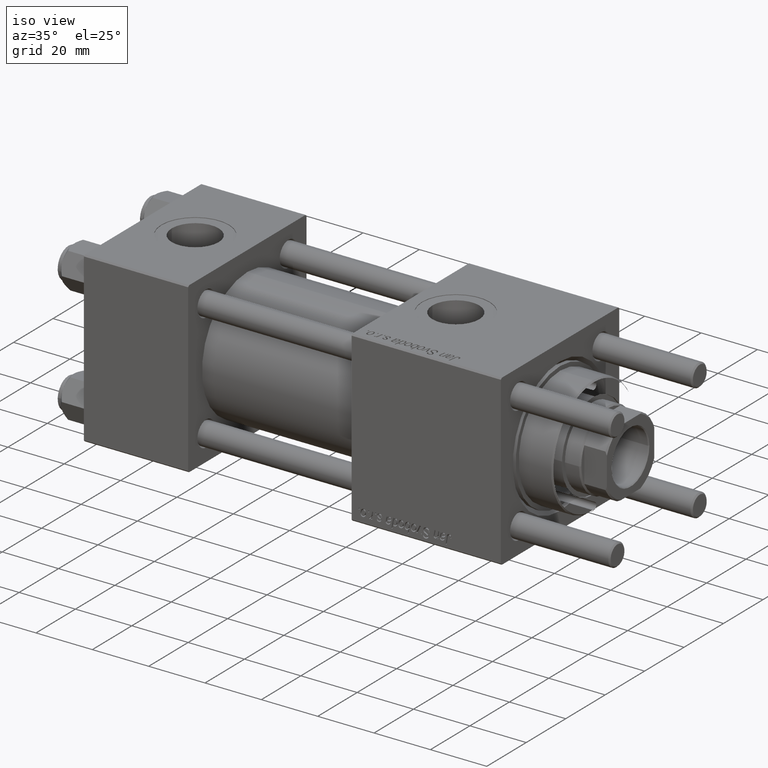
[diagram: clean part render]
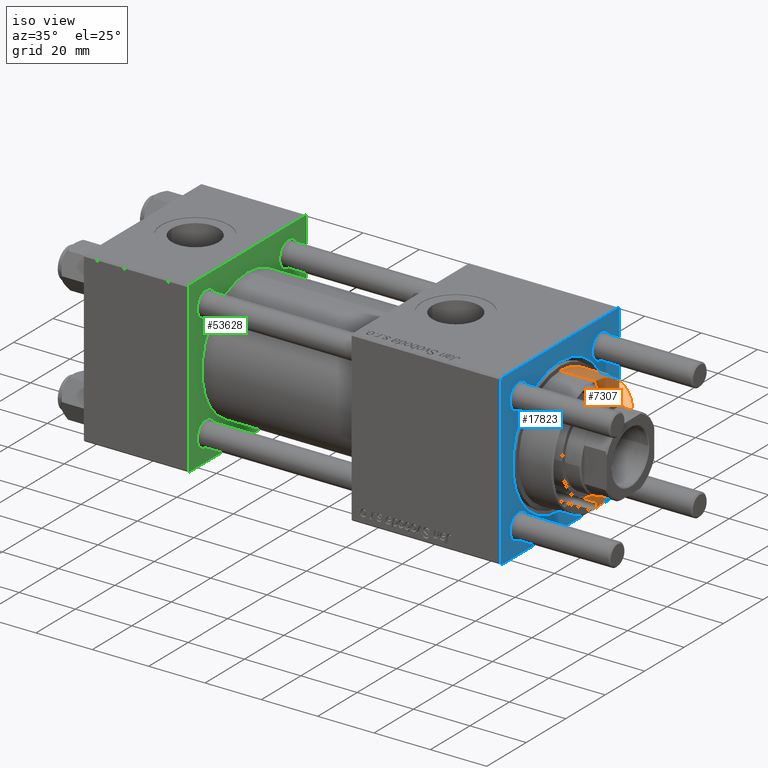
[diagram: same view with three faces highlighted in distinct colors, each labeled with its STEP entity id]
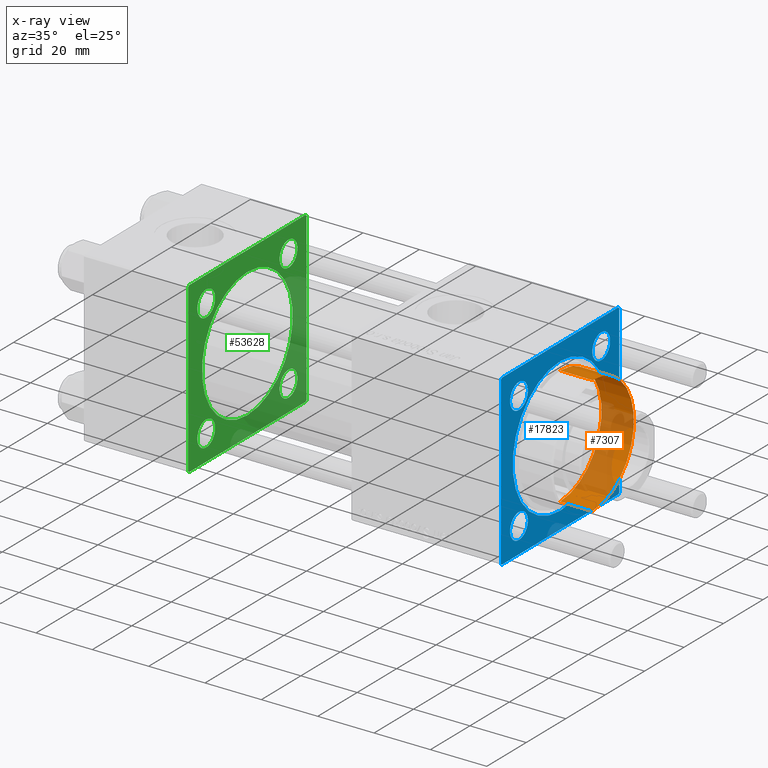
[diagram: x-ray of the same camera — body ghosted, the three highlighted faces saturated]
A machine part, iso view with three faces highlighted in distinct colors.
The next image is the same camera in x-ray (body ghosted, the three faces saturated) — at least one of them is partly hidden behind the body in this view.
Their STEP definitions:

[orange] entity #7307 — the highlighted cylindrical surface (partial cylindrical patch) has radius 21 mm, axis along (-1, -0, 0).
#661 = DIRECTION ( 'NONE',  ( -0.000000000000000000, -0.000000000000000000, -1.000000000000000000 ) ) ;
#1628 = DIRECTION ( 'NONE',  ( 0.000000000000000000, 0.000000000000000000, 1.000000000000000000 ) ) ;
#2353 = ORIENTED_EDGE ( 'NONE', *, *, #32613, .T. ) ;
#5846 = CARTESIAN_POINT ( 'NONE',  ( 21.00000000000000000, 2.571758278209441661E-15, 40.19999999999998863 ) ) ;
#7307 = ADVANCED_FACE ( 'NONE', ( #24473 ), #50431, .T. ) ;
#7558 = CARTESIAN_POINT ( 'NONE',  ( 21.00000000000000000, 2.571758278209441661E-15, 28.69999999999999929 ) ) ;
#8148 = CARTESIAN_POINT ( 'NONE',  ( 0.000000000000000000, 0.000000000000000000, 40.19999999999998863 ) ) ;
#8756 = EDGE_CURVE ( 'NONE', #31700, #32382, #22860, .T. ) ;
#9243 = DIRECTION ( 'NONE',  ( -0.000000000000000000, -0.000000000000000000, -1.000000000000000000 ) ) ;
#10036 = VECTOR ( 'NONE', #661, 1000.000000000000000 ) ;
#12476 = DIRECTION ( 'NONE',  ( 1.000000000000000000, 0.000000000000000000, 0.000000000000000000 ) ) ;
#18282 = ORIENTED_EDGE ( 'NONE', *, *, #38628, .F. ) ;
#18995 = VERTEX_POINT ( 'NONE', #5846 ) ;
#19374 = CIRCLE ( 'NONE', #54352, 21.00000000000000000 ) ;
#20576 = CARTESIAN_POINT ( 'NONE',  ( -21.00000000000000000, 0.000000000000000000, 40.70000000000000284 ) ) ;
#20737 = EDGE_CURVE ( 'NONE', #31317, #18995, #19374, .T. ) ;
#21903 = CARTESIAN_POINT ( 'NONE',  ( 21.00000000000000000, 2.571758278209441661E-15, 40.70000000000000284 ) ) ;
#22860 = CIRCLE ( 'NONE', #26513, 21.00000000000000000 ) ;
#24473 = FACE_OUTER_BOUND ( 'NONE', #53379, .T. ) ;
#25164 = ORIENTED_EDGE ( 'NONE', *, *, #8756, .T. ) ;
#26513 = AXIS2_PLACEMENT_3D ( 'NONE', #50030, #1628, #26967 ) ;
#26967 = DIRECTION ( 'NONE',  ( 1.000000000000000000, 0.000000000000000000, 0.000000000000000000 ) ) ;
#29249 = AXIS2_PLACEMENT_3D ( 'NONE', #32840, #42357, #33426 ) ;
#31144 = ORIENTED_EDGE ( 'NONE', *, *, #20737, .T. ) ;
#31317 = VERTEX_POINT ( 'NONE', #47995 ) ;
#31700 = VERTEX_POINT ( 'NONE', #7558 ) ;
#32382 = VERTEX_POINT ( 'NONE', #56609 ) ;
#32613 = EDGE_CURVE ( 'NONE', #18995, #31700, #43822, .T. ) ;
#32840 = CARTESIAN_POINT ( 'NONE',  ( 0.000000000000000000, 0.000000000000000000, 40.70000000000000284 ) ) ;
#33426 = DIRECTION ( 'NONE',  ( -1.000000000000000000, 0.000000000000000000, 0.000000000000000000 ) ) ;
#38628 = EDGE_CURVE ( 'NONE', #31317, #32382, #42475, .T. ) ;
#42357 = DIRECTION ( 'NONE',  ( -0.000000000000000000, -0.000000000000000000, -1.000000000000000000 ) ) ;
#42475 = LINE ( 'NONE', #20576, #10036 ) ;
#43822 = LINE ( 'NONE', #21903, #56414 ) ;
#47995 = CARTESIAN_POINT ( 'NONE',  ( -21.00000000000000000, 0.000000000000000000, 40.19999999999998863 ) ) ;
#50030 = CARTESIAN_POINT ( 'NONE',  ( 0.000000000000000000, 0.000000000000000000, 28.69999999999999929 ) ) ;
#50431 = CYLINDRICAL_SURFACE ( 'NONE', #29249, 21.00000000000000000 ) ;
#52795 = DIRECTION ( 'NONE',  ( 0.000000000000000000, 0.000000000000000000, -1.000000000000000000 ) ) ;
#53379 = EDGE_LOOP ( 'NONE', ( #31144, #2353, #25164, #18282 ) ) ;
#54352 = AXIS2_PLACEMENT_3D ( 'NONE', #8148, #52795, #12476 ) ;
#56414 = VECTOR ( 'NONE', #9243, 1000.000000000000000 ) ;
#56609 = CARTESIAN_POINT ( 'NONE',  ( -21.00000000000000000, 0.000000000000000000, 28.69999999999999929 ) ) ;

[blue] entity #17823 — the highlighted planar face has unit normal (-1, 0, 0).
#734 = EDGE_CURVE ( 'NONE', #2885, #24514, #1461, .T. ) ;
#963 = EDGE_CURVE ( 'NONE', #19025, #3186, #14430, .T. ) ;
#1203 = CARTESIAN_POINT ( 'NONE',  ( 148.0000000000000000, 30.00000000000000000, 29.50000000000000000 ) ) ;
#1461 = CIRCLE ( 'NONE', #22612, 24.00000000000003908 ) ;
#1583 = DIRECTION ( 'NONE',  ( 0.000000000000000000, 0.7071067811865474617, -0.7071067811865474617 ) ) ;
#1802 = LINE ( 'NONE', #23956, #48539 ) ;
#1964 = EDGE_CURVE ( 'NONE', #15733, #20073, #9806, .T. ) ;
#1990 = VERTEX_POINT ( 'NONE', #27942 ) ;
#2524 = EDGE_CURVE ( 'NONE', #21580, #38340, #10729, .T. ) ;
#2616 = CARTESIAN_POINT ( 'NONE',  ( 148.0000000000000000, -20.84999999999999076, -25.35000000000002274 ) ) ;
#2792 = DIRECTION ( 'NONE',  ( -0.000000000000000000, 0.000000000000000000, 1.000000000000000000 ) ) ;
#2885 = VERTEX_POINT ( 'NONE', #48720 ) ;
#3186 = VERTEX_POINT ( 'NONE', #10051 ) ;
#3200 = CARTESIAN_POINT ( 'NONE',  ( 148.0000000000000000, 29.50000000000000000, 30.00000000000000000 ) ) ;
#3364 = FACE_BOUND ( 'NONE', #21308, .T. ) ;
#3444 = EDGE_CURVE ( 'NONE', #46912, #9276, #17191, .T. ) ;
#3587 = EDGE_CURVE ( 'NONE', #24514, #2885, #43855, .T. ) ;
#3963 = EDGE_CURVE ( 'NONE', #1990, #8160, #36338, .T. ) ;
#4222 = DIRECTION ( 'NONE',  ( 0.000000000000000000, 0.000000000000000000, 1.000000000000000000 ) ) ;
#4436 = DIRECTION ( 'NONE',  ( 0.000000000000000000, 0.000000000000000000, 1.000000000000000000 ) ) ;
#5067 = DIRECTION ( 'NONE',  ( 0.000000000000000000, 0.000000000000000000, 1.000000000000000000 ) ) ;
#5608 = DIRECTION ( 'NONE',  ( -1.000000000000000000, 0.000000000000000000, -0.000000000000000000 ) ) ;
#5778 = DIRECTION ( 'NONE',  ( -1.000000000000000000, 0.000000000000000000, -0.000000000000000000 ) ) ;
#5893 = ORIENTED_EDGE ( 'NONE', *, *, #3444, .T. ) ;
#6052 = DIRECTION ( 'NONE',  ( 0.000000000000000000, 0.000000000000000000, 1.000000000000000000 ) ) ;
#6135 = DIRECTION ( 'NONE',  ( 0.000000000000000000, -1.000000000000000000, -1.156482317317871478E-16 ) ) ;
#6450 = VERTEX_POINT ( 'NONE', #9426 ) ;
#6655 = ORIENTED_EDGE ( 'NONE', *, *, #42200, .T. ) ;
#7302 = ORIENTED_EDGE ( 'NONE', *, *, #9809, .T. ) ;
#7660 = CARTESIAN_POINT ( 'NONE',  ( 148.0000000000000000, 0.000000000000000000, 0.000000000000000000 ) ) ;
#7925 = VECTOR ( 'NONE', #31717, 1000.000000000000114 ) ;
#7984 = DIRECTION ( 'NONE',  ( -1.000000000000000000, 0.000000000000000000, -0.000000000000000000 ) ) ;
#8160 = VERTEX_POINT ( 'NONE', #11979 ) ;
#8162 = CIRCLE ( 'NONE', #44958, 4.500000000000017764 ) ;
#8267 = AXIS2_PLACEMENT_3D ( 'NONE', #34184, #47166, #2792 ) ;
#8471 = VERTEX_POINT ( 'NONE', #1203 ) ;
#9276 = VERTEX_POINT ( 'NONE', #48463 ) ;
#9426 = CARTESIAN_POINT ( 'NONE',  ( 148.0000000000000000, 20.84999999999999787, -16.34999999999998366 ) ) ;
#9550 = ORIENTED_EDGE ( 'NONE', *, *, #13409, .T. ) ;
#9806 = CIRCLE ( 'NONE', #30032, 4.500000000000017764 ) ;
#9809 = EDGE_CURVE ( 'NONE', #23866, #23623, #1802, .T. ) ;
#10051 = CARTESIAN_POINT ( 'NONE',  ( 148.0000000000000000, 30.00000000000000000, -29.49999999999997868 ) ) ;
#10554 = LINE ( 'NONE', #15718, #46775 ) ;
#10729 = CIRCLE ( 'NONE', #49333, 4.500000000000017764 ) ;
#10731 = ORIENTED_EDGE ( 'NONE', *, *, #53679, .F. ) ;
#10799 = CARTESIAN_POINT ( 'NONE',  ( 148.0000000000000000, 20.84999999999999787, 20.85000000000000142 ) ) ;
#10887 = EDGE_CURVE ( 'NONE', #20073, #15733, #35698, .T. ) ;
#11979 = CARTESIAN_POINT ( 'NONE',  ( 148.0000000000000000, -30.00000000000000000, -29.49999999999998579 ) ) ;
#12266 = ORIENTED_EDGE ( 'NONE', *, *, #36081, .T. ) ;
#13409 = EDGE_CURVE ( 'NONE', #25716, #6450, #8162, .T. ) ;
#13591 = CARTESIAN_POINT ( 'NONE',  ( 148.0000000000000000, 20.84999999999999787, -20.85000000000000142 ) ) ;
#13992 = CARTESIAN_POINT ( 'NONE',  ( 148.0000000000000000, -20.84999999999999076, -20.85000000000000497 ) ) ;
#14165 = DIRECTION ( 'NONE',  ( -1.000000000000000000, 0.000000000000000000, -0.000000000000000000 ) ) ;
#14260 = CARTESIAN_POINT ( 'NONE',  ( 148.0000000000000000, -20.84999999999999076, 20.85000000000000497 ) ) ;
#14407 = VECTOR ( 'NONE', #45277, 1000.000000000000000 ) ;
#14430 = LINE ( 'NONE', #22490, #7925 ) ;
#15386 = DIRECTION ( 'NONE',  ( 0.000000000000000000, 0.000000000000000000, 1.000000000000000000 ) ) ;
#15446 = CARTESIAN_POINT ( 'NONE',  ( 148.0000000000000000, 2.939152317953652628E-15, 24.00000000000003908 ) ) ;
#15718 = CARTESIAN_POINT ( 'NONE',  ( 148.0000000000000000, -30.00000000000000000, 29.49999999999999289 ) ) ;
#15733 = VERTEX_POINT ( 'NONE', #52769 ) ;
#16319 = PLANE ( 'NONE',  #8267 ) ;
#16756 = ORIENTED_EDGE ( 'NONE', *, *, #3963, .T. ) ;
#16889 = FACE_BOUND ( 'NONE', #55677, .T. ) ;
#16908 = CARTESIAN_POINT ( 'NONE',  ( 148.0000000000000000, -20.84999999999999076, 20.85000000000000497 ) ) ;
#17191 = CIRCLE ( 'NONE', #40202, 4.500000000000017764 ) ;
#17823 = ADVANCED_FACE ( 'NONE', ( #33325, #55245, #3364, #16889, #25240, #29568 ), #16319, .F. ) ;
#18035 = DIRECTION ( 'NONE',  ( -1.000000000000000000, 0.000000000000000000, -0.000000000000000000 ) ) ;
#18082 = EDGE_CURVE ( 'NONE', #8160, #38365, #22884, .T. ) ;
#18257 = LINE ( 'NONE', #36678, #37157 ) ;
#18384 = VECTOR ( 'NONE', #1583, 1000.000000000000114 ) ;
#18789 = CARTESIAN_POINT ( 'NONE',  ( 148.0000000000000000, -20.84999999999999076, 25.35000000000002274 ) ) ;
#19025 = VERTEX_POINT ( 'NONE', #53696 ) ;
#19354 = ORIENTED_EDGE ( 'NONE', *, *, #42259, .T. ) ;
#20073 = VERTEX_POINT ( 'NONE', #2616 ) ;
#20495 = ORIENTED_EDGE ( 'NONE', *, *, #39393, .T. ) ;
#21062 = ORIENTED_EDGE ( 'NONE', *, *, #2524, .T. ) ;
#21209 = LINE ( 'NONE', #34188, #40751 ) ;
#21308 = EDGE_LOOP ( 'NONE', ( #5893, #6655 ) ) ;
#21580 = VERTEX_POINT ( 'NONE', #18789 ) ;
#22218 = AXIS2_PLACEMENT_3D ( 'NONE', #34494, #29319, #30164 ) ;
#22490 = CARTESIAN_POINT ( 'NONE',  ( 148.0000000000000000, 30.00000000000000000, -29.49999999999999289 ) ) ;
#22612 = AXIS2_PLACEMENT_3D ( 'NONE', #35037, #18035, #5067 ) ;
#22781 = EDGE_LOOP ( 'NONE', ( #31704, #24838 ) ) ;
#22814 = AXIS2_PLACEMENT_3D ( 'NONE', #13992, #31563, #39921 ) ;
#22874 = ORIENTED_EDGE ( 'NONE', *, *, #963, .T. ) ;
#22884 = LINE ( 'NONE', #41041, #18384 ) ;
#23623 = VERTEX_POINT ( 'NONE', #56914 ) ;
#23866 = VERTEX_POINT ( 'NONE', #3200 ) ;
#23956 = CARTESIAN_POINT ( 'NONE',  ( 148.0000000000000000, 30.00000000000000000, 30.00000000000000000 ) ) ;
#24514 = VERTEX_POINT ( 'NONE', #15446 ) ;
#24838 = ORIENTED_EDGE ( 'NONE', *, *, #3587, .T. ) ;
#25240 = FACE_BOUND ( 'NONE', #22781, .T. ) ;
#25716 = VERTEX_POINT ( 'NONE', #54005 ) ;
#25804 = CIRCLE ( 'NONE', #36838, 4.500000000000017764 ) ;
#26702 = CIRCLE ( 'NONE', #48810, 4.500000000000017764 ) ;
#27675 = CARTESIAN_POINT ( 'NONE',  ( 148.0000000000000000, -30.00000000000000000, 29.99999999999999289 ) ) ;
#27942 = CARTESIAN_POINT ( 'NONE',  ( 148.0000000000000000, -30.00000000000000000, 29.49999999999999289 ) ) ;
#28504 = EDGE_LOOP ( 'NONE', ( #16756, #43270, #53737, #22874, #10731, #20495, #7302, #12266 ) ) ;
#28632 = CARTESIAN_POINT ( 'NONE',  ( 148.0000000000000000, -29.50000000000000000, -30.00000000000000000 ) ) ;
#29208 = CARTESIAN_POINT ( 'NONE',  ( 148.0000000000000000, 29.50000000000000000, 30.00000000000000000 ) ) ;
#29319 = DIRECTION ( 'NONE',  ( -1.000000000000000000, 0.000000000000000000, -0.000000000000000000 ) ) ;
#29568 = FACE_OUTER_BOUND ( 'NONE', #28504, .T. ) ;
#30032 = AXIS2_PLACEMENT_3D ( 'NONE', #31424, #5778, #6052 ) ;
#30164 = DIRECTION ( 'NONE',  ( 0.000000000000000000, 0.000000000000000000, 1.000000000000000000 ) ) ;
#30340 = ORIENTED_EDGE ( 'NONE', *, *, #10887, .T. ) ;
#31159 = DIRECTION ( 'NONE',  ( 0.000000000000000000, 0.000000000000000000, 1.000000000000000000 ) ) ;
#31424 = CARTESIAN_POINT ( 'NONE',  ( 148.0000000000000000, -20.84999999999999076, -20.85000000000000497 ) ) ;
#31563 = DIRECTION ( 'NONE',  ( -1.000000000000000000, 0.000000000000000000, -0.000000000000000000 ) ) ;
#31704 = ORIENTED_EDGE ( 'NONE', *, *, #734, .T. ) ;
#31717 = DIRECTION ( 'NONE',  ( -0.000000000000000000, 0.7071067811865474617, 0.7071067811865474617 ) ) ;
#32249 = EDGE_LOOP ( 'NONE', ( #9550, #41622 ) ) ;
#32675 = DIRECTION ( 'NONE',  ( -1.000000000000000000, 0.000000000000000000, -0.000000000000000000 ) ) ;
#32686 = LINE ( 'NONE', #29208, #47830 ) ;
#33325 = FACE_BOUND ( 'NONE', #38031, .T. ) ;
#34184 = CARTESIAN_POINT ( 'NONE',  ( 148.0000000000000000, 0.000000000000000000, 0.000000000000000000 ) ) ;
#34188 = CARTESIAN_POINT ( 'NONE',  ( 148.0000000000000000, 30.00000000000000000, 30.00000000000000000 ) ) ;
#34488 = DIRECTION ( 'NONE',  ( -1.000000000000000000, 0.000000000000000000, -0.000000000000000000 ) ) ;
#34494 = CARTESIAN_POINT ( 'NONE',  ( 148.0000000000000000, 20.84999999999999787, -20.85000000000000142 ) ) ;
#35037 = CARTESIAN_POINT ( 'NONE',  ( 148.0000000000000000, 0.000000000000000000, 0.000000000000000000 ) ) ;
#35698 = CIRCLE ( 'NONE', #22814, 4.500000000000017764 ) ;
#36081 = EDGE_CURVE ( 'NONE', #23623, #1990, #10554, .T. ) ;
#36338 = LINE ( 'NONE', #27675, #14407 ) ;
#36678 = CARTESIAN_POINT ( 'NONE',  ( 148.0000000000000000, 30.00000000000000000, -29.99999999999999289 ) ) ;
#36838 = AXIS2_PLACEMENT_3D ( 'NONE', #10799, #32675, #15386 ) ;
#37157 = VECTOR ( 'NONE', #6135, 1000.000000000000000 ) ;
#37290 = CARTESIAN_POINT ( 'NONE',  ( 148.0000000000000000, -20.84999999999999076, 16.34999999999998721 ) ) ;
#38031 = EDGE_LOOP ( 'NONE', ( #30340, #53364 ) ) ;
#38340 = VERTEX_POINT ( 'NONE', #37290 ) ;
#38365 = VERTEX_POINT ( 'NONE', #28632 ) ;
#38816 = CARTESIAN_POINT ( 'NONE',  ( 148.0000000000000000, 20.84999999999999787, 20.85000000000000142 ) ) ;
#39393 = EDGE_CURVE ( 'NONE', #8471, #23866, #32686, .T. ) ;
#39587 = CIRCLE ( 'NONE', #22218, 4.500000000000017764 ) ;
#39921 = DIRECTION ( 'NONE',  ( 0.000000000000000000, 0.000000000000000000, 1.000000000000000000 ) ) ;
#40202 = AXIS2_PLACEMENT_3D ( 'NONE', #38816, #34488, #4222 ) ;
#40751 = VECTOR ( 'NONE', #48277, 1000.000000000000000 ) ;
#41041 = CARTESIAN_POINT ( 'NONE',  ( 148.0000000000000000, -29.50000000000000000, -30.00000000000000000 ) ) ;
#41622 = ORIENTED_EDGE ( 'NONE', *, *, #45800, .T. ) ;
#42200 = EDGE_CURVE ( 'NONE', #9276, #46912, #25804, .T. ) ;
#42259 = EDGE_CURVE ( 'NONE', #38340, #21580, #26702, .T. ) ;
#43270 = ORIENTED_EDGE ( 'NONE', *, *, #18082, .T. ) ;
#43855 = CIRCLE ( 'NONE', #56791, 24.00000000000003908 ) ;
#44958 = AXIS2_PLACEMENT_3D ( 'NONE', #13591, #14165, #31159 ) ;
#45023 = DIRECTION ( 'NONE',  ( 0.000000000000000000, -1.000000000000000000, -1.156482317317871478E-16 ) ) ;
#45277 = DIRECTION ( 'NONE',  ( 0.000000000000000000, 0.000000000000000000, -1.000000000000000000 ) ) ;
#45800 = EDGE_CURVE ( 'NONE', #6450, #25716, #39587, .T. ) ;
#46775 = VECTOR ( 'NONE', #55507, 1000.000000000000114 ) ;
#46809 = DIRECTION ( 'NONE',  ( 0.000000000000000000, -0.7071067811865474617, 0.7071067811865474617 ) ) ;
#46912 = VERTEX_POINT ( 'NONE', #55139 ) ;
#47166 = DIRECTION ( 'NONE',  ( -1.000000000000000000, 0.000000000000000000, -0.000000000000000000 ) ) ;
#47830 = VECTOR ( 'NONE', #46809, 1000.000000000000114 ) ;
#48277 = DIRECTION ( 'NONE',  ( 0.000000000000000000, 0.000000000000000000, -1.000000000000000000 ) ) ;
#48463 = CARTESIAN_POINT ( 'NONE',  ( 148.0000000000000000, 20.84999999999999787, 25.35000000000001918 ) ) ;
#48539 = VECTOR ( 'NONE', #45023, 1000.000000000000000 ) ;
#48720 = CARTESIAN_POINT ( 'NONE',  ( 148.0000000000000000, 0.000000000000000000, -24.00000000000003908 ) ) ;
#48810 = AXIS2_PLACEMENT_3D ( 'NONE', #14260, #5608, #49980 ) ;
#49333 = AXIS2_PLACEMENT_3D ( 'NONE', #16908, #7984, #56683 ) ;
#49980 = DIRECTION ( 'NONE',  ( 0.000000000000000000, 0.000000000000000000, 1.000000000000000000 ) ) ;
#52009 = DIRECTION ( 'NONE',  ( -1.000000000000000000, 0.000000000000000000, -0.000000000000000000 ) ) ;
#52769 = CARTESIAN_POINT ( 'NONE',  ( 148.0000000000000000, -20.84999999999999076, -16.34999999999998721 ) ) ;
#53364 = ORIENTED_EDGE ( 'NONE', *, *, #1964, .T. ) ;
#53679 = EDGE_CURVE ( 'NONE', #8471, #3186, #21209, .T. ) ;
#53696 = CARTESIAN_POINT ( 'NONE',  ( 148.0000000000000000, 29.50000000000000000, -29.99999999999999289 ) ) ;
#53737 = ORIENTED_EDGE ( 'NONE', *, *, #56978, .F. ) ;
#54005 = CARTESIAN_POINT ( 'NONE',  ( 148.0000000000000000, 20.84999999999999787, -25.35000000000001918 ) ) ;
#55139 = CARTESIAN_POINT ( 'NONE',  ( 148.0000000000000000, 20.84999999999999787, 16.34999999999998366 ) ) ;
#55245 = FACE_BOUND ( 'NONE', #32249, .T. ) ;
#55507 = DIRECTION ( 'NONE',  ( -0.000000000000000000, -0.7071067811865474617, -0.7071067811865474617 ) ) ;
#55677 = EDGE_LOOP ( 'NONE', ( #19354, #21062 ) ) ;
#56683 = DIRECTION ( 'NONE',  ( 0.000000000000000000, 0.000000000000000000, 1.000000000000000000 ) ) ;
#56791 = AXIS2_PLACEMENT_3D ( 'NONE', #7660, #52009, #4436 ) ;
#56914 = CARTESIAN_POINT ( 'NONE',  ( 148.0000000000000000, -29.50000000000000000, 29.99999999999999289 ) ) ;
#56978 = EDGE_CURVE ( 'NONE', #19025, #38365, #18257, .T. ) ;

[green] entity #53628 — the highlighted planar face has unit normal (-1, 0, 0).
#261 = DIRECTION ( 'NONE',  ( 0.000000000000000000, 0.000000000000000000, 1.000000000000000000 ) ) ;
#1365 = ORIENTED_EDGE ( 'NONE', *, *, #34192, .T. ) ;
#1412 = CARTESIAN_POINT ( 'NONE',  ( 37.00000000000000000, 29.99999999999999289, 30.00000000000000000 ) ) ;
#1587 = ORIENTED_EDGE ( 'NONE', *, *, #27275, .F. ) ;
#1813 = ORIENTED_EDGE ( 'NONE', *, *, #36298, .T. ) ;
#1862 = CARTESIAN_POINT ( 'NONE',  ( 37.00000000000000000, -30.00000000000000000, 29.99999999999999289 ) ) ;
#2508 = CARTESIAN_POINT ( 'NONE',  ( 37.00000000000000000, 29.99999999999999289, -29.50000000000000000 ) ) ;
#3005 = VERTEX_POINT ( 'NONE', #55927 ) ;
#4199 = PLANE ( 'NONE',  #33385 ) ;
#4447 = LINE ( 'NONE', #43089, #46834 ) ;
#4731 = CARTESIAN_POINT ( 'NONE',  ( 37.00000000000000000, 20.84999999999999787, -16.35000000000001208 ) ) ;
#4786 = CARTESIAN_POINT ( 'NONE',  ( 37.00000000000000000, 20.84999999999999787, 25.34999999999999076 ) ) ;
#5407 = DIRECTION ( 'NONE',  ( 0.000000000000000000, 0.7071067811865474617, -0.7071067811865474617 ) ) ;
#5480 = VERTEX_POINT ( 'NONE', #11125 ) ;
#5597 = DIRECTION ( 'NONE',  ( -1.000000000000000000, 0.000000000000000000, -0.000000000000000000 ) ) ;
#5761 = CARTESIAN_POINT ( 'NONE',  ( 37.00000000000000000, -29.49999999999998579, 29.99999999999999289 ) ) ;
#6191 = ORIENTED_EDGE ( 'NONE', *, *, #10628, .T. ) ;
#6214 = EDGE_CURVE ( 'NONE', #39125, #10193, #18970, .T. ) ;
#6358 = CARTESIAN_POINT ( 'NONE',  ( 37.00000000000000000, 29.49999999999999289, 30.00000000000000000 ) ) ;
#6487 = CIRCLE ( 'NONE', #33183, 4.499999999999990230 ) ;
#6541 = CARTESIAN_POINT ( 'NONE',  ( 37.00000000000000000, 20.84999999999999787, 20.85000000000000142 ) ) ;
#6699 = AXIS2_PLACEMENT_3D ( 'NONE', #6541, #19508, #45733 ) ;
#6833 = DIRECTION ( 'NONE',  ( -0.000000000000000000, 0.7071067811865574537, 0.7071067811865376918 ) ) ;
#6955 = VERTEX_POINT ( 'NONE', #10545 ) ;
#7453 = DIRECTION ( 'NONE',  ( 0.000000000000000000, -1.000000000000000000, -1.156482317317871725E-16 ) ) ;
#7852 = VERTEX_POINT ( 'NONE', #4786 ) ;
#8108 = VECTOR ( 'NONE', #55165, 1000.000000000000000 ) ;
#8686 = EDGE_CURVE ( 'NONE', #3005, #23786, #17369, .T. ) ;
#8873 = EDGE_CURVE ( 'NONE', #10193, #13392, #4447, .T. ) ;
#9338 = CARTESIAN_POINT ( 'NONE',  ( 37.00000000000000000, 20.84999999999999787, 20.85000000000000142 ) ) ;
#10004 = AXIS2_PLACEMENT_3D ( 'NONE', #13677, #5597, #48820 ) ;
#10193 = VERTEX_POINT ( 'NONE', #5761 ) ;
#10319 = LINE ( 'NONE', #10603, #42500 ) ;
#10420 = CIRCLE ( 'NONE', #19577, 23.00000000000000000 ) ;
#10443 = DIRECTION ( 'NONE',  ( -1.000000000000000000, 0.000000000000000000, -0.000000000000000000 ) ) ;
#10545 = CARTESIAN_POINT ( 'NONE',  ( 37.00000000000000000, 20.84999999999999787, 16.35000000000001208 ) ) ;
#10603 = CARTESIAN_POINT ( 'NONE',  ( 37.00000000000000000, -29.50000000000001066, -30.00000000000000711 ) ) ;
#10628 = EDGE_CURVE ( 'NONE', #45259, #25655, #33037, .T. ) ;
#11125 = CARTESIAN_POINT ( 'NONE',  ( 37.00000000000000000, -20.84999999999999076, 25.34999999999999432 ) ) ;
#11380 = LINE ( 'NONE', #1862, #8108 ) ;
#12302 = FACE_BOUND ( 'NONE', #20842, .T. ) ;
#12353 = DIRECTION ( 'NONE',  ( 0.000000000000000000, 0.000000000000000000, 1.000000000000000000 ) ) ;
#13258 = DIRECTION ( 'NONE',  ( 1.000000000000000000, -0.000000000000000000, 0.000000000000000000 ) ) ;
#13392 = VERTEX_POINT ( 'NONE', #17916 ) ;
#13495 = DIRECTION ( 'NONE',  ( -1.000000000000000000, 0.000000000000000000, -0.000000000000000000 ) ) ;
#13613 = CIRCLE ( 'NONE', #51344, 4.499999999999990230 ) ;
#13677 = CARTESIAN_POINT ( 'NONE',  ( 37.00000000000000000, 20.84999999999999787, -20.85000000000000142 ) ) ;
#13875 = DIRECTION ( 'NONE',  ( 0.000000000000000000, -0.7071067811865474617, 0.7071067811865474617 ) ) ;
#13880 = DIRECTION ( 'NONE',  ( 1.000000000000000000, -0.000000000000000000, 0.000000000000000000 ) ) ;
#13920 = ORIENTED_EDGE ( 'NONE', *, *, #46332, .T. ) ;
#15544 = CIRCLE ( 'NONE', #10004, 4.499999999999990230 ) ;
#15691 = CARTESIAN_POINT ( 'NONE',  ( 37.00000000000000000, -20.84999999999999076, -16.35000000000001208 ) ) ;
#15910 = CIRCLE ( 'NONE', #6699, 4.499999999999990230 ) ;
#15991 = AXIS2_PLACEMENT_3D ( 'NONE', #20421, #37999, #12353 ) ;
#16266 = EDGE_LOOP ( 'NONE', ( #13920, #1365 ) ) ;
#16363 = CARTESIAN_POINT ( 'NONE',  ( 37.00000000000000000, 29.99999999999999289, -30.00000000000000000 ) ) ;
#16608 = FACE_OUTER_BOUND ( 'NONE', #49100, .T. ) ;
#17109 = VERTEX_POINT ( 'NONE', #22208 ) ;
#17135 = DIRECTION ( 'NONE',  ( -0.000000000000000000, -0.7071067811865474617, -0.7071067811865474617 ) ) ;
#17369 = CIRCLE ( 'NONE', #38519, 4.499999999999990230 ) ;
#17916 = CARTESIAN_POINT ( 'NONE',  ( 37.00000000000000000, -30.00000000000000000, 29.49999999999999289 ) ) ;
#18697 = VERTEX_POINT ( 'NONE', #23748 ) ;
#18827 = ORIENTED_EDGE ( 'NONE', *, *, #21756, .F. ) ;
#18900 = VERTEX_POINT ( 'NONE', #15691 ) ;
#18970 = LINE ( 'NONE', #1412, #35661 ) ;
#19508 = DIRECTION ( 'NONE',  ( -1.000000000000000000, 0.000000000000000000, -0.000000000000000000 ) ) ;
#19577 = AXIS2_PLACEMENT_3D ( 'NONE', #26480, #13258, #35714 ) ;
#20421 = CARTESIAN_POINT ( 'NONE',  ( 37.00000000000000000, -20.84999999999999076, 20.85000000000000497 ) ) ;
#20842 = EDGE_LOOP ( 'NONE', ( #55454, #41566 ) ) ;
#21055 = VECTOR ( 'NONE', #13875, 1000.000000000000114 ) ;
#21072 = VECTOR ( 'NONE', #6833, 999.9999999999998863 ) ;
#21756 = EDGE_CURVE ( 'NONE', #48619, #25655, #56239, .T. ) ;
#21993 = DIRECTION ( 'NONE',  ( -1.000000000000000000, 0.000000000000000000, -0.000000000000000000 ) ) ;
#22208 = CARTESIAN_POINT ( 'NONE',  ( 37.00000000000000000, -2.602085213965210642E-15, 23.00000000000000000 ) ) ;
#22282 = DIRECTION ( 'NONE',  ( 0.000000000000000000, 0.000000000000000000, 1.000000000000000000 ) ) ;
#23748 = CARTESIAN_POINT ( 'NONE',  ( 37.00000000000000000, -30.00000000000000000, -29.50000000000001776 ) ) ;
#23786 = VERTEX_POINT ( 'NONE', #4731 ) ;
#24239 = EDGE_CURVE ( 'NONE', #45259, #41343, #55001, .T. ) ;
#24443 = EDGE_LOOP ( 'NONE', ( #26884, #1587 ) ) ;
#25655 = VERTEX_POINT ( 'NONE', #45067 ) ;
#26017 = AXIS2_PLACEMENT_3D ( 'NONE', #9338, #21993, #22282 ) ;
#26355 = DIRECTION ( 'NONE',  ( -1.000000000000000000, 0.000000000000000000, -0.000000000000000000 ) ) ;
#26480 = CARTESIAN_POINT ( 'NONE',  ( 37.00000000000000000, -2.602085213965210642E-15, 0.000000000000000000 ) ) ;
#26553 = CARTESIAN_POINT ( 'NONE',  ( 37.00000000000000000, -20.84999999999999076, -25.34999999999999432 ) ) ;
#26798 = EDGE_LOOP ( 'NONE', ( #49698, #43560 ) ) ;
#26884 = ORIENTED_EDGE ( 'NONE', *, *, #47167, .F. ) ;
#27247 = CARTESIAN_POINT ( 'NONE',  ( 37.00000000000000000, 20.84999999999999787, -20.85000000000000142 ) ) ;
#27275 = EDGE_CURVE ( 'NONE', #49085, #17109, #10420, .T. ) ;
#27776 = EDGE_CURVE ( 'NONE', #6955, #7852, #32486, .T. ) ;
#28266 = DIRECTION ( 'NONE',  ( 0.000000000000000000, 0.000000000000000000, 1.000000000000000000 ) ) ;
#29064 = CARTESIAN_POINT ( 'NONE',  ( 37.00000000000000000, 29.49999999999999289, 30.00000000000000000 ) ) ;
#29445 = EDGE_CURVE ( 'NONE', #18697, #41343, #10319, .T. ) ;
#30417 = CIRCLE ( 'NONE', #56250, 23.00000000000000000 ) ;
#30541 = ORIENTED_EDGE ( 'NONE', *, *, #56169, .T. ) ;
#30584 = CARTESIAN_POINT ( 'NONE',  ( 37.00000000000000000, 29.49999999999997868, -30.00000000000000000 ) ) ;
#31496 = ORIENTED_EDGE ( 'NONE', *, *, #33917, .T. ) ;
#31924 = CARTESIAN_POINT ( 'NONE',  ( 37.00000000000000000, -20.84999999999999076, -20.85000000000000497 ) ) ;
#32209 = DIRECTION ( 'NONE',  ( -1.000000000000000000, 0.000000000000000000, -0.000000000000000000 ) ) ;
#32486 = CIRCLE ( 'NONE', #26017, 4.499999999999990230 ) ;
#33037 = LINE ( 'NONE', #2508, #21072 ) ;
#33183 = AXIS2_PLACEMENT_3D ( 'NONE', #31924, #32209, #48937 ) ;
#33385 = AXIS2_PLACEMENT_3D ( 'NONE', #52893, #26355, #56395 ) ;
#33917 = EDGE_CURVE ( 'NONE', #13392, #18697, #11380, .T. ) ;
#34192 = EDGE_CURVE ( 'NONE', #18900, #41571, #13613, .T. ) ;
#34304 = CARTESIAN_POINT ( 'NONE',  ( 37.00000000000000000, 2.146024240737012665E-16, -23.00000000000000000 ) ) ;
#34822 = CARTESIAN_POINT ( 'NONE',  ( 37.00000000000000000, -20.84999999999999076, 16.35000000000001208 ) ) ;
#35661 = VECTOR ( 'NONE', #54717, 1000.000000000000000 ) ;
#35714 = DIRECTION ( 'NONE',  ( 0.000000000000000000, 0.000000000000000000, 1.000000000000000000 ) ) ;
#36298 = EDGE_CURVE ( 'NONE', #48619, #39125, #37189, .T. ) ;
#36766 = DIRECTION ( 'NONE',  ( 0.000000000000000000, 0.000000000000000000, 1.000000000000000000 ) ) ;
#37159 = EDGE_CURVE ( 'NONE', #23786, #3005, #15544, .T. ) ;
#37189 = LINE ( 'NONE', #6358, #21055 ) ;
#37854 = VECTOR ( 'NONE', #38638, 1000.000000000000000 ) ;
#37999 = DIRECTION ( 'NONE',  ( -1.000000000000000000, 0.000000000000000000, -0.000000000000000000 ) ) ;
#38423 = CARTESIAN_POINT ( 'NONE',  ( 37.00000000000000000, -29.50000000000000000, -30.00000000000000711 ) ) ;
#38480 = CARTESIAN_POINT ( 'NONE',  ( 37.00000000000000000, 29.99999999999999289, 29.50000000000000000 ) ) ;
#38512 = FACE_BOUND ( 'NONE', #24443, .T. ) ;
#38519 = AXIS2_PLACEMENT_3D ( 'NONE', #27247, #54068, #36766 ) ;
#38638 = DIRECTION ( 'NONE',  ( 0.000000000000000000, 0.000000000000000000, -1.000000000000000000 ) ) ;
#39125 = VERTEX_POINT ( 'NONE', #29064 ) ;
#40095 = CARTESIAN_POINT ( 'NONE',  ( 37.00000000000000000, -2.602085213965210642E-15, 0.000000000000000000 ) ) ;
#40967 = CARTESIAN_POINT ( 'NONE',  ( 37.00000000000000000, -20.84999999999999076, -20.85000000000000497 ) ) ;
#41343 = VERTEX_POINT ( 'NONE', #38423 ) ;
#41566 = ORIENTED_EDGE ( 'NONE', *, *, #37159, .T. ) ;
#41571 = VERTEX_POINT ( 'NONE', #26553 ) ;
#42034 = ORIENTED_EDGE ( 'NONE', *, *, #6214, .T. ) ;
#42500 = VECTOR ( 'NONE', #5407, 1000.000000000000114 ) ;
#43089 = CARTESIAN_POINT ( 'NONE',  ( 37.00000000000000000, -30.00000000000000000, 29.49999999999999289 ) ) ;
#43118 = FACE_BOUND ( 'NONE', #26798, .T. ) ;
#43403 = FACE_BOUND ( 'NONE', #16266, .T. ) ;
#43560 = ORIENTED_EDGE ( 'NONE', *, *, #53420, .T. ) ;
#43672 = EDGE_CURVE ( 'NONE', #5480, #46161, #55339, .T. ) ;
#43983 = EDGE_LOOP ( 'NONE', ( #30541, #48910 ) ) ;
#45067 = CARTESIAN_POINT ( 'NONE',  ( 37.00000000000000000, 29.99999999999999289, -29.50000000000000000 ) ) ;
#45259 = VERTEX_POINT ( 'NONE', #30584 ) ;
#45733 = DIRECTION ( 'NONE',  ( 0.000000000000000000, 0.000000000000000000, 1.000000000000000000 ) ) ;
#46161 = VERTEX_POINT ( 'NONE', #34822 ) ;
#46332 = EDGE_CURVE ( 'NONE', #41571, #18900, #6487, .T. ) ;
#46834 = VECTOR ( 'NONE', #17135, 1000.000000000000114 ) ;
#47167 = EDGE_CURVE ( 'NONE', #17109, #49085, #30417, .T. ) ;
#47782 = ORIENTED_EDGE ( 'NONE', *, *, #24239, .F. ) ;
#48619 = VERTEX_POINT ( 'NONE', #38480 ) ;
#48736 = DIRECTION ( 'NONE',  ( 0.000000000000000000, 0.000000000000000000, 1.000000000000000000 ) ) ;
#48820 = DIRECTION ( 'NONE',  ( 0.000000000000000000, 0.000000000000000000, 1.000000000000000000 ) ) ;
#48910 = ORIENTED_EDGE ( 'NONE', *, *, #43672, .T. ) ;
#48937 = DIRECTION ( 'NONE',  ( 0.000000000000000000, 0.000000000000000000, 1.000000000000000000 ) ) ;
#49085 = VERTEX_POINT ( 'NONE', #34304 ) ;
#49100 = EDGE_LOOP ( 'NONE', ( #47782, #6191, #18827, #1813, #42034, #50036, #31496, #56105 ) ) ;
#49698 = ORIENTED_EDGE ( 'NONE', *, *, #27776, .T. ) ;
#49853 = VECTOR ( 'NONE', #7453, 1000.000000000000000 ) ;
#50036 = ORIENTED_EDGE ( 'NONE', *, *, #8873, .T. ) ;
#51344 = AXIS2_PLACEMENT_3D ( 'NONE', #40967, #10443, #28266 ) ;
#51632 = AXIS2_PLACEMENT_3D ( 'NONE', #51647, #13495, #261 ) ;
#51647 = CARTESIAN_POINT ( 'NONE',  ( 37.00000000000000000, -20.84999999999999076, 20.85000000000000497 ) ) ;
#52893 = CARTESIAN_POINT ( 'NONE',  ( 37.00000000000000000, 0.000000000000000000, 0.000000000000000000 ) ) ;
#53420 = EDGE_CURVE ( 'NONE', #7852, #6955, #15910, .T. ) ;
#53628 = ADVANCED_FACE ( 'NONE', ( #43403, #12302, #56114, #43118, #38512, #16608 ), #4199, .F. ) ;
#54068 = DIRECTION ( 'NONE',  ( -1.000000000000000000, 0.000000000000000000, -0.000000000000000000 ) ) ;
#54717 = DIRECTION ( 'NONE',  ( 0.000000000000000000, -1.000000000000000000, -1.156482317317871725E-16 ) ) ;
#55001 = LINE ( 'NONE', #16363, #49853 ) ;
#55165 = DIRECTION ( 'NONE',  ( 0.000000000000000000, 0.000000000000000000, -1.000000000000000000 ) ) ;
#55339 = CIRCLE ( 'NONE', #51632, 4.499999999999990230 ) ;
#55454 = ORIENTED_EDGE ( 'NONE', *, *, #8686, .T. ) ;
#55589 = CIRCLE ( 'NONE', #15991, 4.499999999999990230 ) ;
#55927 = CARTESIAN_POINT ( 'NONE',  ( 37.00000000000000000, 20.84999999999999787, -25.34999999999999076 ) ) ;
#56105 = ORIENTED_EDGE ( 'NONE', *, *, #29445, .T. ) ;
#56114 = FACE_BOUND ( 'NONE', #43983, .T. ) ;
#56169 = EDGE_CURVE ( 'NONE', #46161, #5480, #55589, .T. ) ;
#56239 = LINE ( 'NONE', #56521, #37854 ) ;
#56250 = AXIS2_PLACEMENT_3D ( 'NONE', #40095, #13880, #48736 ) ;
#56395 = DIRECTION ( 'NONE',  ( -0.000000000000000000, 0.000000000000000000, 1.000000000000000000 ) ) ;
#56521 = CARTESIAN_POINT ( 'NONE',  ( 37.00000000000000000, 29.99999999999999289, 30.00000000000000000 ) ) ;